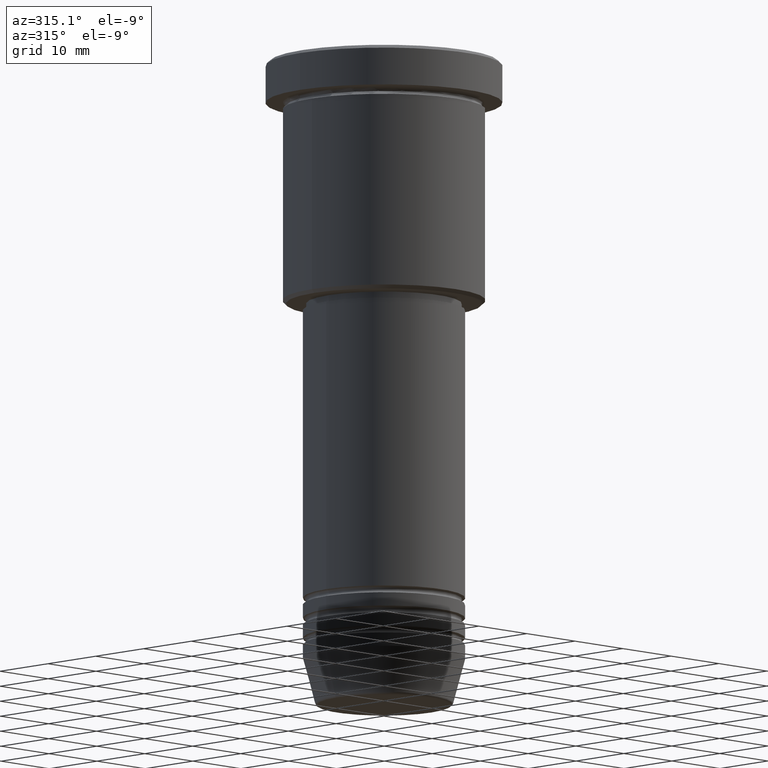
[diagram: clean part render]
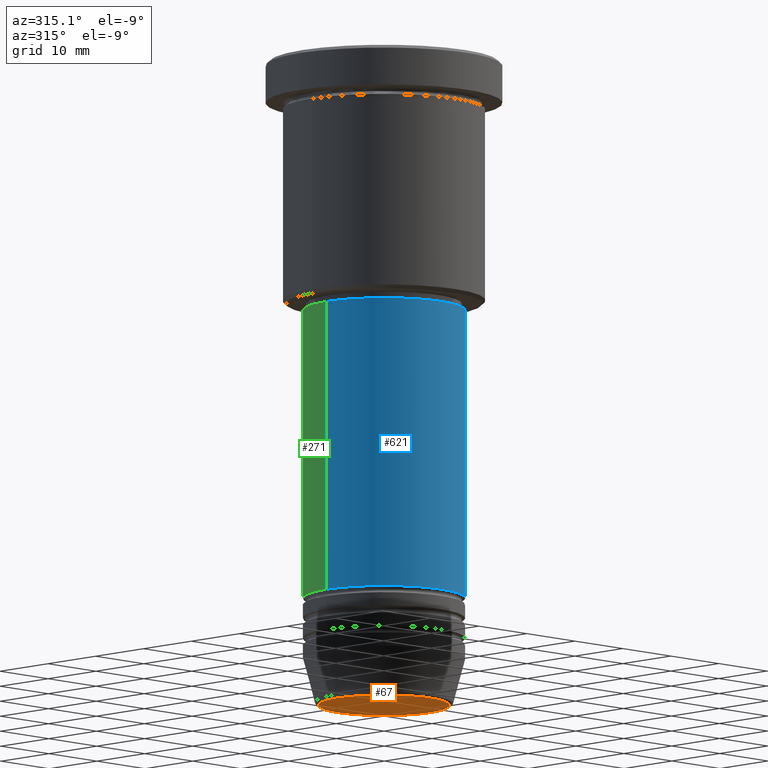
[diagram: same view with three faces highlighted in distinct colors, each labeled with its STEP entity id]
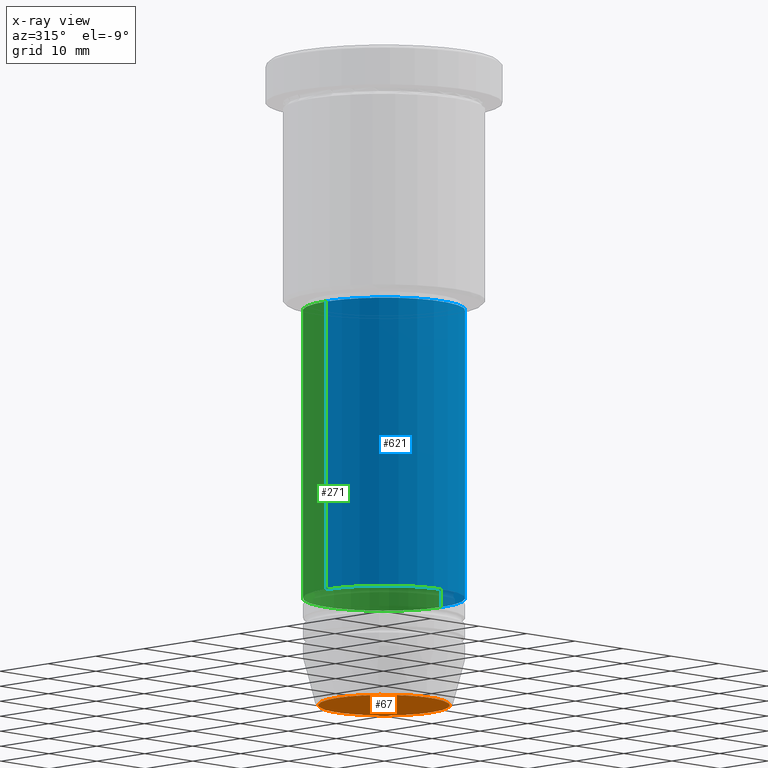
[diagram: x-ray of the same camera — body ghosted, the three highlighted faces saturated]
A machine part, auxiliary view with three faces highlighted in distinct colors.
The next image is the same camera in x-ray (body ghosted, the three faces saturated) — at least one of them is partly hidden behind the body in this view.
Their STEP definitions:

[orange] entity #67 — the highlighted planar face has unit normal (0, -0, 1).
#11 = EDGE_CURVE ( 'NONE', #49, #877, #73, .T. ) ;
#49 = VERTEX_POINT ( 'NONE', #504 ) ;
#56 = FACE_OUTER_BOUND ( 'NONE', #1128, .T. ) ;
#67 = ADVANCED_FACE ( 'NONE', ( #56 ), #707, .F. ) ;
#73 = CIRCLE ( 'NONE', #433, 9.740692158992654726 ) ;
#142 = ORIENTED_EDGE ( 'NONE', *, *, #934, .T. ) ;
#246 = DIRECTION ( 'NONE',  ( 1.000000000000000000, 0.000000000000000000, 0.000000000000000000 ) ) ;
#311 = AXIS2_PLACEMENT_3D ( 'NONE', #528, #805, #880 ) ;
#331 = CARTESIAN_POINT ( 'NONE',  ( -9.740692158992654726, 1.222463696683474210E-15, -96.00000000000000000 ) ) ;
#419 = DIRECTION ( 'NONE',  ( 1.000000000000000000, 0.000000000000000000, 0.000000000000000000 ) ) ;
#433 = AXIS2_PLACEMENT_3D ( 'NONE', #1056, #876, #246 ) ;
#437 = CARTESIAN_POINT ( 'NONE',  ( 0.000000000000000000, 0.000000000000000000, -96.00000000000000000 ) ) ;
#504 = CARTESIAN_POINT ( 'NONE',  ( 9.740692158992654726, 0.000000000000000000, -96.00000000000000000 ) ) ;
#528 = CARTESIAN_POINT ( 'NONE',  ( 0.000000000000000000, 0.000000000000000000, -96.00000000000000000 ) ) ;
#541 = ORIENTED_EDGE ( 'NONE', *, *, #11, .T. ) ;
#707 = PLANE ( 'NONE',  #1043 ) ;
#805 = DIRECTION ( 'NONE',  ( 0.000000000000000000, 0.000000000000000000, -1.000000000000000000 ) ) ;
#870 = DIRECTION ( 'NONE',  ( 0.000000000000000000, -0.000000000000000000, 1.000000000000000000 ) ) ;
#876 = DIRECTION ( 'NONE',  ( 0.000000000000000000, 0.000000000000000000, -1.000000000000000000 ) ) ;
#877 = VERTEX_POINT ( 'NONE', #331 ) ;
#880 = DIRECTION ( 'NONE',  ( 1.000000000000000000, 0.000000000000000000, 0.000000000000000000 ) ) ;
#934 = EDGE_CURVE ( 'NONE', #877, #49, #1012, .T. ) ;
#1012 = CIRCLE ( 'NONE', #311, 9.740692158992654726 ) ;
#1043 = AXIS2_PLACEMENT_3D ( 'NONE', #437, #870, #419 ) ;
#1056 = CARTESIAN_POINT ( 'NONE',  ( 0.000000000000000000, 0.000000000000000000, -96.00000000000000000 ) ) ;
#1128 = EDGE_LOOP ( 'NONE', ( #541, #142 ) ) ;

[blue] entity #621 — the highlighted cylindrical surface (partial cylindrical patch) has radius 12 mm, axis along (-0, -0, 1).
#6 = LINE ( 'NONE', #1093, #323 ) ;
#51 = DIRECTION ( 'NONE',  ( -0.000000000000000000, -0.000000000000000000, 1.000000000000000000 ) ) ;
#98 = CARTESIAN_POINT ( 'NONE',  ( 0.000000000000000000, 0.000000000000000000, 0.000000000000000000 ) ) ;
#108 = CARTESIAN_POINT ( 'NONE',  ( -12.00000000000000000, 1.469576158976823947E-15, -79.99999999999997158 ) ) ;
#111 = EDGE_CURVE ( 'NONE', #1011, #645, #399, .T. ) ;
#169 = FACE_OUTER_BOUND ( 'NONE', #1036, .T. ) ;
#170 = CARTESIAN_POINT ( 'NONE',  ( 12.00000000000000000, 0.000000000000000000, 0.000000000000000000 ) ) ;
#176 = CYLINDRICAL_SURFACE ( 'NONE', #477, 12.00000000000000000 ) ;
#189 = ORIENTED_EDGE ( 'NONE', *, *, #905, .T. ) ;
#222 = CIRCLE ( 'NONE', #455, 12.00000000000000000 ) ;
#229 = CARTESIAN_POINT ( 'NONE',  ( 12.00000000000000000, 0.000000000000000000, -79.99999999999997158 ) ) ;
#240 = ORIENTED_EDGE ( 'NONE', *, *, #598, .F. ) ;
#262 = DIRECTION ( 'NONE',  ( 1.000000000000000000, 0.000000000000000000, 0.000000000000000000 ) ) ;
#323 = VECTOR ( 'NONE', #622, 1000.000000000000000 ) ;
#399 = CIRCLE ( 'NONE', #988, 12.00000000000000000 ) ;
#412 = ORIENTED_EDGE ( 'NONE', *, *, #473, .T. ) ;
#448 = CARTESIAN_POINT ( 'NONE',  ( 0.000000000000000000, 0.000000000000000000, -79.99999999999997158 ) ) ;
#455 = AXIS2_PLACEMENT_3D ( 'NONE', #448, #990, #1156 ) ;
#473 = EDGE_CURVE ( 'NONE', #714, #764, #222, .T. ) ;
#477 = AXIS2_PLACEMENT_3D ( 'NONE', #98, #524, #902 ) ;
#505 = CARTESIAN_POINT ( 'NONE',  ( -12.00000000000000000, 1.469576158976823947E-15, -36.99999999999997868 ) ) ;
#524 = DIRECTION ( 'NONE',  ( -0.000000000000000000, -0.000000000000000000, 1.000000000000000000 ) ) ;
#576 = CARTESIAN_POINT ( 'NONE',  ( 12.00000000000000000, 0.000000000000000000, -36.99999999999997868 ) ) ;
#598 = EDGE_CURVE ( 'NONE', #714, #1011, #6, .T. ) ;
#621 = ADVANCED_FACE ( 'NONE', ( #169 ), #176, .T. ) ;
#622 = DIRECTION ( 'NONE',  ( -0.000000000000000000, -0.000000000000000000, 1.000000000000000000 ) ) ;
#645 = VERTEX_POINT ( 'NONE', #576 ) ;
#714 = VERTEX_POINT ( 'NONE', #108 ) ;
#764 = VERTEX_POINT ( 'NONE', #229 ) ;
#794 = CARTESIAN_POINT ( 'NONE',  ( 0.000000000000000000, 0.000000000000000000, -36.99999999999997868 ) ) ;
#868 = LINE ( 'NONE', #170, #920 ) ;
#902 = DIRECTION ( 'NONE',  ( 1.000000000000000000, 0.000000000000000000, 0.000000000000000000 ) ) ;
#905 = EDGE_CURVE ( 'NONE', #764, #645, #868, .T. ) ;
#910 = ORIENTED_EDGE ( 'NONE', *, *, #111, .F. ) ;
#920 = VECTOR ( 'NONE', #51, 1000.000000000000000 ) ;
#988 = AXIS2_PLACEMENT_3D ( 'NONE', #794, #1158, #262 ) ;
#990 = DIRECTION ( 'NONE',  ( -0.000000000000000000, -0.000000000000000000, 1.000000000000000000 ) ) ;
#1011 = VERTEX_POINT ( 'NONE', #505 ) ;
#1036 = EDGE_LOOP ( 'NONE', ( #240, #412, #189, #910 ) ) ;
#1093 = CARTESIAN_POINT ( 'NONE',  ( -12.00000000000000000, 1.469576158976823947E-15, 0.000000000000000000 ) ) ;
#1156 = DIRECTION ( 'NONE',  ( 1.000000000000000000, 0.000000000000000000, 0.000000000000000000 ) ) ;
#1158 = DIRECTION ( 'NONE',  ( -0.000000000000000000, -0.000000000000000000, 1.000000000000000000 ) ) ;

[green] entity #271 — the highlighted cylindrical surface (partial cylindrical patch) has radius 12 mm, axis along (-0, -0, 1).
#6 = LINE ( 'NONE', #1093, #323 ) ;
#51 = DIRECTION ( 'NONE',  ( -0.000000000000000000, -0.000000000000000000, 1.000000000000000000 ) ) ;
#71 = EDGE_LOOP ( 'NONE', ( #409, #983, #93, #1137 ) ) ;
#93 = ORIENTED_EDGE ( 'NONE', *, *, #658, .F. ) ;
#108 = CARTESIAN_POINT ( 'NONE',  ( -12.00000000000000000, 1.469576158976823947E-15, -79.99999999999997158 ) ) ;
#154 = DIRECTION ( 'NONE',  ( -0.000000000000000000, -0.000000000000000000, 1.000000000000000000 ) ) ;
#170 = CARTESIAN_POINT ( 'NONE',  ( 12.00000000000000000, 0.000000000000000000, 0.000000000000000000 ) ) ;
#206 = EDGE_CURVE ( 'NONE', #764, #714, #648, .T. ) ;
#229 = CARTESIAN_POINT ( 'NONE',  ( 12.00000000000000000, 0.000000000000000000, -79.99999999999997158 ) ) ;
#253 = CIRCLE ( 'NONE', #630, 12.00000000000000000 ) ;
#269 = DIRECTION ( 'NONE',  ( 1.000000000000000000, 0.000000000000000000, 0.000000000000000000 ) ) ;
#271 = ADVANCED_FACE ( 'NONE', ( #789 ), #428, .T. ) ;
#323 = VECTOR ( 'NONE', #622, 1000.000000000000000 ) ;
#409 = ORIENTED_EDGE ( 'NONE', *, *, #206, .T. ) ;
#410 = DIRECTION ( 'NONE',  ( 1.000000000000000000, 0.000000000000000000, 0.000000000000000000 ) ) ;
#428 = CYLINDRICAL_SURFACE ( 'NONE', #454, 12.00000000000000000 ) ;
#440 = DIRECTION ( 'NONE',  ( -0.000000000000000000, -0.000000000000000000, 1.000000000000000000 ) ) ;
#454 = AXIS2_PLACEMENT_3D ( 'NONE', #891, #440, #804 ) ;
#505 = CARTESIAN_POINT ( 'NONE',  ( -12.00000000000000000, 1.469576158976823947E-15, -36.99999999999997868 ) ) ;
#576 = CARTESIAN_POINT ( 'NONE',  ( 12.00000000000000000, 0.000000000000000000, -36.99999999999997868 ) ) ;
#598 = EDGE_CURVE ( 'NONE', #714, #1011, #6, .T. ) ;
#622 = DIRECTION ( 'NONE',  ( -0.000000000000000000, -0.000000000000000000, 1.000000000000000000 ) ) ;
#630 = AXIS2_PLACEMENT_3D ( 'NONE', #943, #154, #269 ) ;
#645 = VERTEX_POINT ( 'NONE', #576 ) ;
#648 = CIRCLE ( 'NONE', #685, 12.00000000000000000 ) ;
#658 = EDGE_CURVE ( 'NONE', #645, #1011, #253, .T. ) ;
#685 = AXIS2_PLACEMENT_3D ( 'NONE', #1136, #946, #410 ) ;
#714 = VERTEX_POINT ( 'NONE', #108 ) ;
#764 = VERTEX_POINT ( 'NONE', #229 ) ;
#789 = FACE_OUTER_BOUND ( 'NONE', #71, .T. ) ;
#804 = DIRECTION ( 'NONE',  ( 1.000000000000000000, 0.000000000000000000, 0.000000000000000000 ) ) ;
#868 = LINE ( 'NONE', #170, #920 ) ;
#891 = CARTESIAN_POINT ( 'NONE',  ( 0.000000000000000000, 0.000000000000000000, 0.000000000000000000 ) ) ;
#905 = EDGE_CURVE ( 'NONE', #764, #645, #868, .T. ) ;
#920 = VECTOR ( 'NONE', #51, 1000.000000000000000 ) ;
#943 = CARTESIAN_POINT ( 'NONE',  ( 0.000000000000000000, 0.000000000000000000, -36.99999999999997868 ) ) ;
#946 = DIRECTION ( 'NONE',  ( -0.000000000000000000, -0.000000000000000000, 1.000000000000000000 ) ) ;
#983 = ORIENTED_EDGE ( 'NONE', *, *, #598, .T. ) ;
#1011 = VERTEX_POINT ( 'NONE', #505 ) ;
#1093 = CARTESIAN_POINT ( 'NONE',  ( -12.00000000000000000, 1.469576158976823947E-15, 0.000000000000000000 ) ) ;
#1136 = CARTESIAN_POINT ( 'NONE',  ( 0.000000000000000000, 0.000000000000000000, -79.99999999999997158 ) ) ;
#1137 = ORIENTED_EDGE ( 'NONE', *, *, #905, .F. ) ;